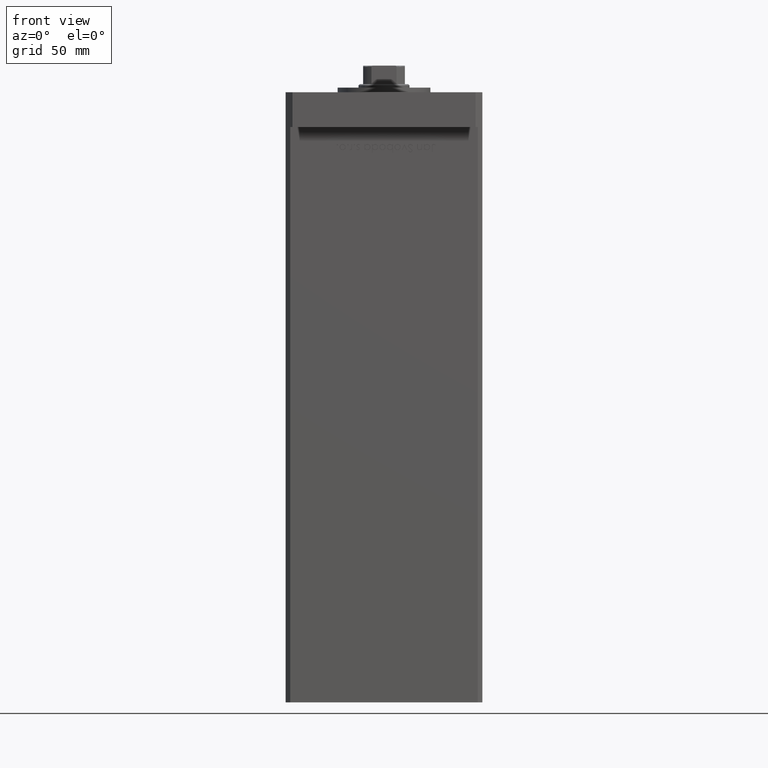
[diagram: clean part render]
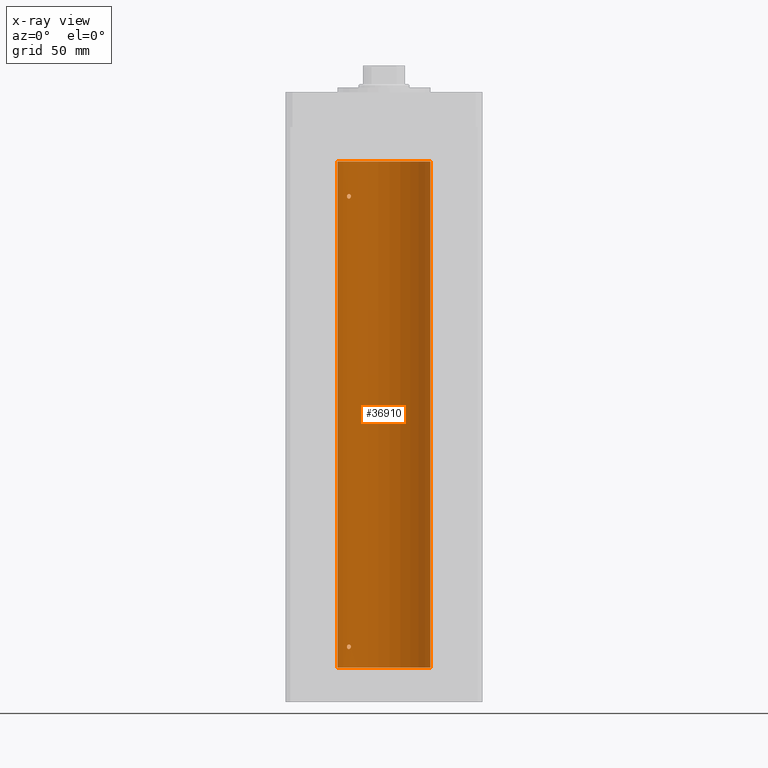
[diagram: x-ray — body ghosted, one internal face saturated and labeled with its STEP entity id]
A machine part, front view, then the same camera in x-ray: the body is ghosted and one INTERNAL B-rep face — a face not visible from any outside direction — is saturated and labeled: STEP entity #36910.
In plain terms, the highlighted cylindrical surface (partial cylindrical patch) has radius 20 mm, axis along (-0, -0, -1).
Its self-contained STEP definition (entity closure, byte-faithful):
#508 = CARTESIAN_POINT ( 'NONE',  ( -15.37869370082498044, 12.78737709343839057, 9.984378433483328763 ) ) ;
#591 = AXIS2_PLACEMENT_3D ( 'NONE', #29995, #4793, #38142 ) ;
#1770 = CARTESIAN_POINT ( 'NONE',  ( -15.80861854366319719, 12.25167421322532491, 9.676052991901718414 ) ) ;
#2532 = CARTESIAN_POINT ( 'NONE',  ( -15.97265980134107721, 12.03662641108512332, 203.1953373148639344 ) ) ;
#2708 = CARTESIAN_POINT ( 'NONE',  ( -15.28000793038419758, 12.90520882930644042, 204.5021502285312067 ) ) ;
#2992 = ORIENTED_EDGE ( 'NONE', *, *, #48708, .F. ) ;
#3232 = CYLINDRICAL_SURFACE ( 'NONE', #5646, 20.00000000000000000 ) ;
#3233 = CARTESIAN_POINT ( 'NONE',  ( -14.40763032799402055, 13.87162499441319063, 203.9952174752552878 ) ) ;
#3496 = FACE_BOUND ( 'NONE', #37920, .T. ) ;
#4793 = DIRECTION ( 'NONE',  ( -0.000000000000000000, 0.000000000000000000, 1.000000000000000000 ) ) ;
#4842 = CARTESIAN_POINT ( 'NONE',  ( -15.56338254739985594, 12.56194079578775202, 9.906815049669297935 ) ) ;
#5646 = AXIS2_PLACEMENT_3D ( 'NONE', #47970, #20049, #47709 ) ;
#5693 = DIRECTION ( 'NONE',  ( -0.000000000000000000, -0.000000000000000000, -1.000000000000000000 ) ) ;
#6249 = CARTESIAN_POINT ( 'NONE',  ( -14.28285685708573105, 14.00000000000002665, 203.6525126096658482 ) ) ;
#6508 = CARTESIAN_POINT ( 'NONE',  ( -15.99999999999999645, 12.00000000000000711, 203.5000000000000000 ) ) ;
#6780 = CARTESIAN_POINT ( 'NONE',  ( -15.87665094074984573, 12.16298652314402595, 204.0660500660140428 ) ) ;
#6835 = EDGE_LOOP ( 'NONE', ( #42948, #53557 ) ) ;
#6872 = VERTEX_POINT ( 'NONE', #30439 ) ;
#7042 = CARTESIAN_POINT ( 'NONE',  ( -15.97258576326347068, 12.03672672663914867, 203.8051374092137848 ) ) ;
#7180 = CARTESIAN_POINT ( 'NONE',  ( -14.98166541227929116, 13.25033217142396325, 8.024769614914287530 ) ) ;
#7232 = DIRECTION ( 'NONE',  ( 1.000000000000000000, 0.000000000000000000, 0.000000000000000000 ) ) ;
#7392 = CARTESIAN_POINT ( 'NONE',  ( 20.00000000000000000, 2.449293598294706513E-15, 218.5000000000000000 ) ) ;
#8347 = CARTESIAN_POINT ( 'NONE',  ( -15.99999999999999645, 12.00000000000000711, 203.5000000000000000 ) ) ;
#8643 = CARTESIAN_POINT ( 'NONE',  ( -15.08229700616151270, 13.13572892147766247, 9.997430752714793201 ) ) ;
#8725 = CARTESIAN_POINT ( 'NONE',  ( -15.97265980134107721, 12.03662641108511977, 8.695337314863905931 ) ) ;
#8906 = CARTESIAN_POINT ( 'NONE',  ( -14.40763032799400989, 13.87162499441319952, 9.495217475255255835 ) ) ;
#8985 = CARTESIAN_POINT ( 'NONE',  ( -15.87710824431566614, 12.16238752415382152, 8.434921807322291798 ) ) ;
#9247 = CARTESIAN_POINT ( 'NONE',  ( -14.31871019372461795, 13.96358505023715679, 8.697478539577902623 ) ) ;
#9900 = CARTESIAN_POINT ( 'NONE',  ( -14.51882058315760027, 13.75524947942078313, 9.658734659218616514 ) ) ;
#9940 = VECTOR ( 'NONE', #5693, 1000.000000000000000 ) ;
#10400 = CARTESIAN_POINT ( 'NONE',  ( -15.37869471769012542, 12.79018928545120204, 202.4951659137118725 ) ) ;
#10554 = LINE ( 'NONE', #34159, #9940 ) ;
#10571 = CARTESIAN_POINT ( 'NONE',  ( -15.08229700616151625, 13.13572892147764826, 204.4974307527148483 ) ) ;
#11359 = CARTESIAN_POINT ( 'NONE',  ( -14.69171503997127104, 13.57092520311232420, 204.3305470397793897 ) ) ;
#11624 = CARTESIAN_POINT ( 'NONE',  ( -14.78630942130979697, 13.46798002156743479, 204.3914152795839811 ) ) ;
#13422 = CIRCLE ( 'NONE', #43741, 20.00000000000000000 ) ;
#14473 = CARTESIAN_POINT ( 'NONE',  ( -15.87710824431565548, 12.16238752415382507, 202.9349218073222403 ) ) ;
#14666 = EDGE_CURVE ( 'NONE', #26612, #25700, #35980, .T. ) ;
#15008 = CARTESIAN_POINT ( 'NONE',  ( -14.78531327857342959, 13.46907986586309924, 202.6090990069115207 ) ) ;
#15099 = ORIENTED_EDGE ( 'NONE', *, *, #19059, .F. ) ;
#15269 = CARTESIAN_POINT ( 'NONE',  ( -14.28285685708575770, 13.99999999999999822, 203.3474210506593636 ) ) ;
#15453 = CARTESIAN_POINT ( 'NONE',  ( -15.56338254739985949, 12.56194079578775025, 204.4068150496692624 ) ) ;
#15535 = CARTESIAN_POINT ( 'NONE',  ( -15.99999999999999289, 12.00000000000000888, 203.3456921886413795 ) ) ;
#16485 = CARTESIAN_POINT ( 'NONE',  ( 20.00000000000000000, 2.449293598294706513E-15, 218.5000000000000000 ) ) ;
#16709 = CARTESIAN_POINT ( 'NONE',  ( -14.28285685708537756, 14.00000000000032863, 8.999999999999864997 ) ) ;
#16789 = CARTESIAN_POINT ( 'NONE',  ( -20.00000000000000000, 0.000000000000000000, 218.5000000000000000 ) ) ;
#17060 = CARTESIAN_POINT ( 'NONE',  ( -15.87665094074984928, 12.16298652314402950, 9.566050066014028630 ) ) ;
#17261 = B_SPLINE_CURVE_WITH_KNOTS ( 'NONE', 3,
 ( #49919, #50188, #8725, #8985, #25254, #25516, #44333, #41814, #7180, #34979, #34454, #26588, #21730, #9247, #47187, #30916 ),
 .UNSPECIFIED., .F., .F.,
 ( 4, 2, 2, 2, 2, 2, 2, 4 ),
 ( 1.734723475976807094E-18, 0.0004556152471946670057, 0.0009112304943893322767, 0.001822460988778654796, 0.002278076235973315947, 0.002733691483167977315, 0.003189306730362638249, 0.003644921977557299617 ),
 .UNSPECIFIED. ) ;
#17360 = CARTESIAN_POINT ( 'NONE',  ( 20.00000000000000000, 2.449293598294706513E-15, 0.000000000000000000 ) ) ;
#18052 = CARTESIAN_POINT ( 'NONE',  ( -15.97258576326346713, 12.03672672663914689, 9.305137409213740440 ) ) ;
#18850 = CARTESIAN_POINT ( 'NONE',  ( -14.44276720520014123, 13.83508275448403957, 9.554048662650291845 ) ) ;
#19059 = EDGE_CURVE ( 'NONE', #29568, #29347, #44285, .T. ) ;
#19073 = CARTESIAN_POINT ( 'NONE',  ( -14.51590294503182932, 13.75881262167379404, 202.8367812074223480 ) ) ;
#19248 = CARTESIAN_POINT ( 'NONE',  ( -15.37869370082499110, 12.78737709343838524, 204.4843784334833572 ) ) ;
#19783 = CARTESIAN_POINT ( 'NONE',  ( -15.99999999999999289, 12.00000000000001243, 203.6542407199934814 ) ) ;
#19877 = CARTESIAN_POINT ( 'NONE',  ( -20.00000000000000000, 0.000000000000000000, 0.000000000000000000 ) ) ;
#20049 = DIRECTION ( 'NONE',  ( -0.000000000000000000, -0.000000000000000000, -1.000000000000000000 ) ) ;
#21375 = CARTESIAN_POINT ( 'NONE',  ( -14.28285685708538111, 14.00000000000032685, 203.4999999999998863 ) ) ;
#21384 = CARTESIAN_POINT ( 'NONE',  ( -15.65267653428113093, 12.45028749062556450, 9.845491151963445375 ) ) ;
#21730 = CARTESIAN_POINT ( 'NONE',  ( -14.43642497935765512, 13.84184969151371547, 8.442053335922938828 ) ) ;
#22394 = CARTESIAN_POINT ( 'NONE',  ( -14.98188199575990254, 13.25008090651449244, 9.975236402857765583 ) ) ;
#22914 = CARTESIAN_POINT ( 'NONE',  ( -14.31936354392034616, 13.96291496472316496, 9.304428457027336563 ) ) ;
#23315 = CARTESIAN_POINT ( 'NONE',  ( -14.51882058315760204, 13.75524947942077958, 204.1587346592185952 ) ) ;
#23575 = CARTESIAN_POINT ( 'NONE',  ( -14.98188199575990964, 13.25008090651448178, 204.4752364028577745 ) ) ;
#25254 = CARTESIAN_POINT ( 'NONE',  ( -15.80909732170550441, 12.25106527276995649, 8.324451780901419795 ) ) ;
#25364 = ORIENTED_EDGE ( 'NONE', *, *, #32566, .T. ) ;
#25437 = CARTESIAN_POINT ( 'NONE',  ( -15.28000793038418870, 12.90520882930645108, 10.00215022853124225 ) ) ;
#25516 = CARTESIAN_POINT ( 'NONE',  ( -15.57359523075763086, 12.55100654799543136, 8.068614275410766368 ) ) ;
#25700 = VERTEX_POINT ( 'NONE', #8347 ) ;
#26433 = CARTESIAN_POINT ( 'NONE',  ( -14.56006338825494772, 13.71162570780885126, 9.705357955363325573 ) ) ;
#26588 = CARTESIAN_POINT ( 'NONE',  ( -14.51590294503183820, 13.75881262167379049, 8.336781207422378159 ) ) ;
#26612 = VERTEX_POINT ( 'NONE', #21375 ) ;
#26717 = CARTESIAN_POINT ( 'NONE',  ( -14.69171503997126571, 13.57092520311232420, 9.830547039779318652 ) ) ;
#27841 = VECTOR ( 'NONE', #28543, 1000.000000000000000 ) ;
#27848 = DIRECTION ( 'NONE',  ( -0.000000000000000000, 0.000000000000000000, 1.000000000000000000 ) ) ;
#28177 = CARTESIAN_POINT ( 'NONE',  ( -14.56006338825495483, 13.71162570780885481, 204.2053579553633540 ) ) ;
#28543 = DIRECTION ( 'NONE',  ( -0.000000000000000000, -0.000000000000000000, -1.000000000000000000 ) ) ;
#29347 = VERTEX_POINT ( 'NONE', #17360 ) ;
#29443 = B_SPLINE_CURVE_WITH_KNOTS ( 'NONE', 3,
 ( #52660, #15535, #2532, #14473, #39408, #44543, #10400, #32059, #48324, #15008, #43493, #19073, #43747, #31795, #15269, #51870 ),
 .UNSPECIFIED., .F., .F.,
 ( 4, 2, 2, 2, 2, 2, 2, 4 ),
 ( 0.000000000000000000, 0.0004556152471946448338, 0.0009112304943892896676, 0.001822460988778623354, 0.002278076235973289926, 0.002733691483167956498, 0.003189306730362623070, 0.003644921977557289642 ),
 .UNSPECIFIED. ) ;
#29568 = VERTEX_POINT ( 'NONE', #16485 ) ;
#29995 = CARTESIAN_POINT ( 'NONE',  ( 0.000000000000000000, 0.000000000000000000, 0.000000000000000000 ) ) ;
#30039 = CIRCLE ( 'NONE', #591, 20.00000000000000000 ) ;
#30439 = CARTESIAN_POINT ( 'NONE',  ( -15.99999999999999645, 12.00000000000000533, 9.000000000000014211 ) ) ;
#30916 = CARTESIAN_POINT ( 'NONE',  ( -14.28285685708537756, 14.00000000000032863, 8.999999999999864997 ) ) ;
#31439 = FACE_BOUND ( 'NONE', #6835, .T. ) ;
#31795 = CARTESIAN_POINT ( 'NONE',  ( -14.31871019372461085, 13.96358505023716212, 203.1974785395778724 ) ) ;
#31907 = CARTESIAN_POINT ( 'NONE',  ( 0.000000000000000000, 0.000000000000000000, 218.5000000000000000 ) ) ;
#32059 = CARTESIAN_POINT ( 'NONE',  ( -15.08054978948643488, 13.13774395934156658, 202.5027765441529937 ) ) ;
#32566 = EDGE_CURVE ( 'NONE', #33664, #45339, #10554, .T. ) ;
#33664 = VERTEX_POINT ( 'NONE', #16789 ) ;
#33856 = EDGE_CURVE ( 'NONE', #29568, #33664, #13422, .T. ) ;
#34159 = CARTESIAN_POINT ( 'NONE',  ( -20.00000000000000000, 0.000000000000000000, 218.5000000000000000 ) ) ;
#34454 = CARTESIAN_POINT ( 'NONE',  ( -14.69070843596623099, 13.57200975233014972, 8.170264738076793876 ) ) ;
#34841 = CARTESIAN_POINT ( 'NONE',  ( -16.00000000000000355, 12.00000000000000888, 9.154240719993506303 ) ) ;
#34979 = CARTESIAN_POINT ( 'NONE',  ( -14.78531327857342781, 13.46907986586309569, 8.109099006911467455 ) ) ;
#35278 = VERTEX_POINT ( 'NONE', #16709 ) ;
#35980 = B_SPLINE_CURVE_WITH_KNOTS ( 'NONE', 3,
 ( #47454, #6249, #48771, #3233, #36568, #23315, #28177, #11359, #11624, #23575, #10571, #2708, #19248, #15453, #52838, #52305, #6780, #7042, #19783, #6508 ),
 .UNSPECIFIED., .F., .F.,
 ( 4, 2, 2, 2, 2, 2, 2, 2, 2, 4 ),
 ( 0.003644921977557289642, 0.004100339128177169119, 0.004328047703487108641, 0.004555756278797049030, 0.005011173429416889910, 0.005466590580036730790, 0.005922007730656571670, 0.006377424881276412549, 0.006832842031896252562, 0.007288259182516093442 ),
 .UNSPECIFIED. ) ;
#36568 = CARTESIAN_POINT ( 'NONE',  ( -14.44276720520014656, 13.83508275448404312, 204.0540486626503025 ) ) ;
#36887 = B_SPLINE_CURVE_WITH_KNOTS ( 'NONE', 3,
 ( #51642, #46056, #22914, #8906, #18850, #9900, #26433, #26717, #42991, #22394, #8643, #25437, #508, #4842, #21384, #1770, #17060, #18052, #34841, #51378 ),
 .UNSPECIFIED., .F., .F.,
 ( 4, 2, 2, 2, 2, 2, 2, 2, 2, 4 ),
 ( 0.003644921977557299617, 0.004100339128177156109, 0.004328047703487083488, 0.004555756278797011734, 0.005011173429416868226, 0.005466590580036723851, 0.005922007730656580343, 0.006377424881276436835, 0.006832842031896293328, 0.007288259182516148953 ),
 .UNSPECIFIED. ) ;
#36910 = ADVANCED_FACE ( 'NONE', ( #40116, #31439, #3496 ), #3232, .F. ) ;
#37920 = EDGE_LOOP ( 'NONE', ( #2992, #52654 ) ) ;
#38142 = DIRECTION ( 'NONE',  ( 1.000000000000000000, 0.000000000000000000, 0.000000000000000000 ) ) ;
#39408 = CARTESIAN_POINT ( 'NONE',  ( -15.80909732170550441, 12.25106527276996182, 202.8244517809014269 ) ) ;
#40116 = FACE_OUTER_BOUND ( 'NONE', #47428, .T. ) ;
#40556 = ORIENTED_EDGE ( 'NONE', *, *, #33856, .T. ) ;
#41814 = CARTESIAN_POINT ( 'NONE',  ( -15.08054978948644198, 13.13774395934156836, 8.002776544153013205 ) ) ;
#42948 = ORIENTED_EDGE ( 'NONE', *, *, #47354, .F. ) ;
#42991 = CARTESIAN_POINT ( 'NONE',  ( -14.78630942130979342, 13.46798002156744545, 9.891415279583991804 ) ) ;
#43493 = CARTESIAN_POINT ( 'NONE',  ( -14.69070843596622922, 13.57200975233015505, 202.6702647380768383 ) ) ;
#43741 = AXIS2_PLACEMENT_3D ( 'NONE', #31907, #27848, #7232 ) ;
#43747 = CARTESIAN_POINT ( 'NONE',  ( -14.43642497935765334, 13.84184969151371547, 202.9420533359229069 ) ) ;
#44285 = LINE ( 'NONE', #7392, #27841 ) ;
#44333 = CARTESIAN_POINT ( 'NONE',  ( -15.37869471769012897, 12.79018928545119671, 7.995165913711818284 ) ) ;
#44543 = CARTESIAN_POINT ( 'NONE',  ( -15.57359523075762908, 12.55100654799543847, 202.5686142754107664 ) ) ;
#45339 = VERTEX_POINT ( 'NONE', #19877 ) ;
#46001 = EDGE_CURVE ( 'NONE', #35278, #6872, #36887, .T. ) ;
#46056 = CARTESIAN_POINT ( 'NONE',  ( -14.28285685708573460, 14.00000000000003020, 9.152512609665855337 ) ) ;
#47187 = CARTESIAN_POINT ( 'NONE',  ( -14.28285685708575414, 14.00000000000000000, 8.847421050659361796 ) ) ;
#47354 = EDGE_CURVE ( 'NONE', #6872, #35278, #17261, .T. ) ;
#47428 = EDGE_LOOP ( 'NONE', ( #15099, #40556, #25364, #47994 ) ) ;
#47454 = CARTESIAN_POINT ( 'NONE',  ( -14.28285685708538111, 14.00000000000032685, 203.4999999999998863 ) ) ;
#47709 = DIRECTION ( 'NONE',  ( -1.000000000000000000, 0.000000000000000000, 0.000000000000000000 ) ) ;
#47873 = EDGE_CURVE ( 'NONE', #29347, #45339, #30039, .T. ) ;
#47970 = CARTESIAN_POINT ( 'NONE',  ( 0.000000000000000000, 0.000000000000000000, 218.5000000000000000 ) ) ;
#47994 = ORIENTED_EDGE ( 'NONE', *, *, #47873, .F. ) ;
#48324 = CARTESIAN_POINT ( 'NONE',  ( -14.98166541227928761, 13.25033217142396325, 202.5247696149142769 ) ) ;
#48708 = EDGE_CURVE ( 'NONE', #25700, #26612, #29443, .T. ) ;
#48771 = CARTESIAN_POINT ( 'NONE',  ( -14.31936354392035149, 13.96291496472315785, 203.8044284570273135 ) ) ;
#49919 = CARTESIAN_POINT ( 'NONE',  ( -15.99999999999999645, 12.00000000000000533, 9.000000000000014211 ) ) ;
#50188 = CARTESIAN_POINT ( 'NONE',  ( -16.00000000000000355, 12.00000000000000711, 8.845692188641420373 ) ) ;
#51378 = CARTESIAN_POINT ( 'NONE',  ( -15.99999999999999645, 12.00000000000000533, 9.000000000000014211 ) ) ;
#51642 = CARTESIAN_POINT ( 'NONE',  ( -14.28285685708537756, 14.00000000000032863, 8.999999999999864997 ) ) ;
#51870 = CARTESIAN_POINT ( 'NONE',  ( -14.28285685708538111, 14.00000000000032685, 203.4999999999998863 ) ) ;
#52305 = CARTESIAN_POINT ( 'NONE',  ( -15.80861854366320074, 12.25167421322532668, 204.1760529919016847 ) ) ;
#52654 = ORIENTED_EDGE ( 'NONE', *, *, #14666, .F. ) ;
#52660 = CARTESIAN_POINT ( 'NONE',  ( -15.99999999999999645, 12.00000000000000711, 203.5000000000000000 ) ) ;
#52838 = CARTESIAN_POINT ( 'NONE',  ( -15.65267653428112027, 12.45028749062556983, 204.3454911519634720 ) ) ;
#53557 = ORIENTED_EDGE ( 'NONE', *, *, #46001, .F. ) ;